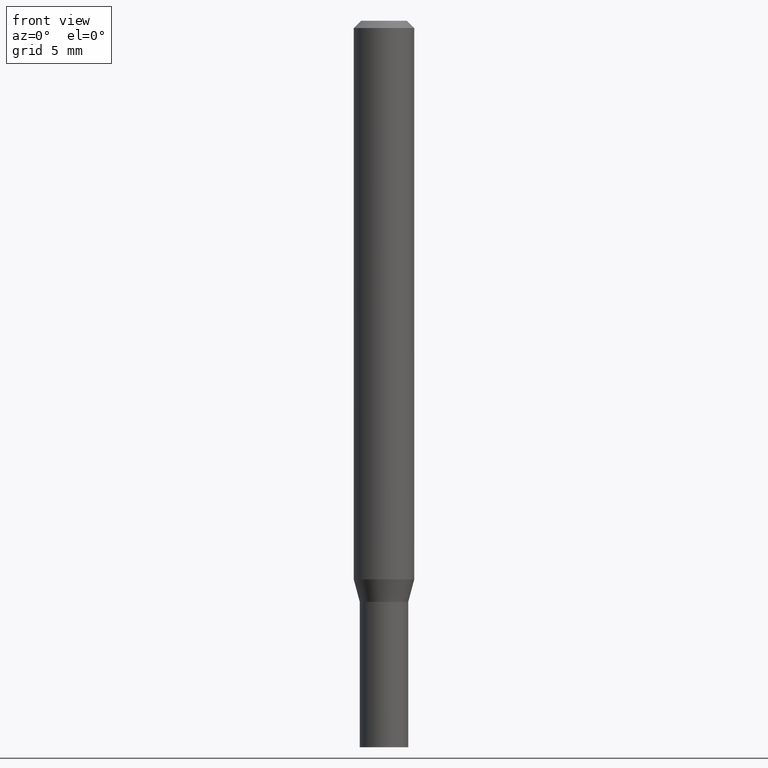
[diagram: clean part render]
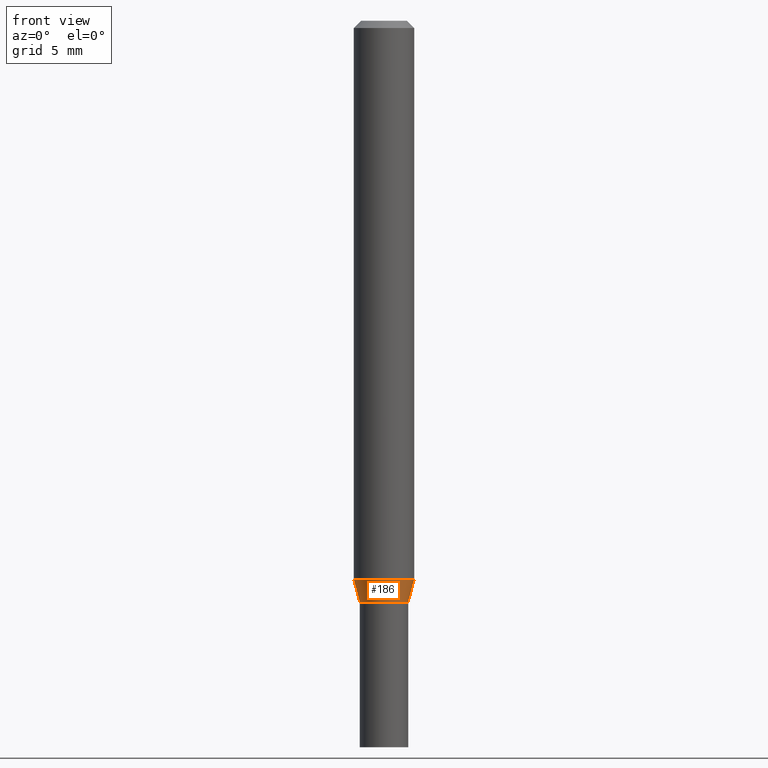
[diagram: same view with one face highlighted and labeled with its STEP entity id]
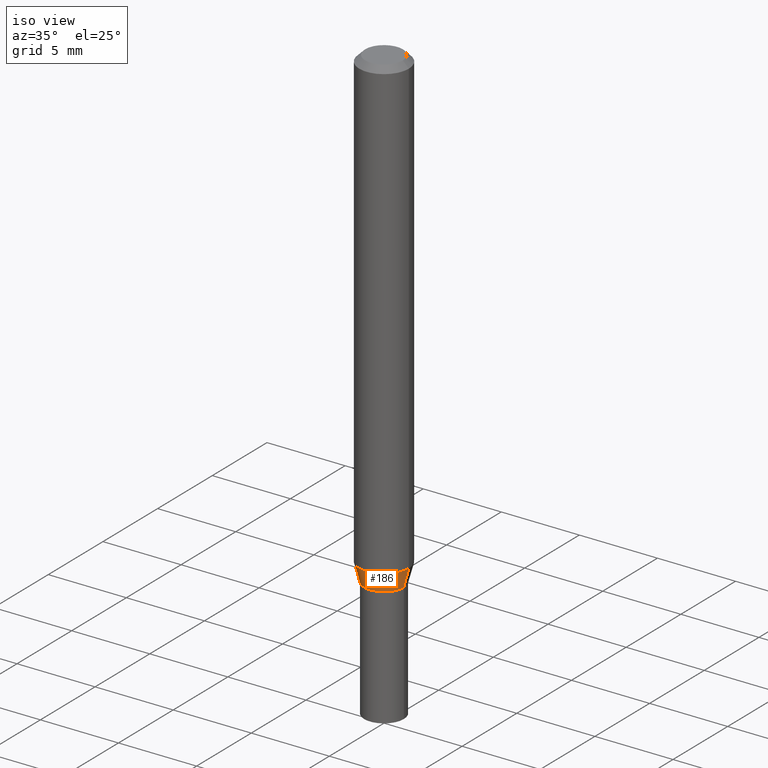
[diagram: same view with one face highlighted and labeled with its STEP entity id]
A machine part, front view. The second image highlights one B-rep face of the part: STEP entity #186.
A second angle (iso view) of the same face is appended — the face is thin or edge-on in the first view.
In plain terms, the highlighted conical surface has half-angle 15 deg.
Its self-contained STEP definition (entity closure, byte-faithful):
#6 = VERTEX_POINT ( 'NONE', #192 ) ;
#18 = ORIENTED_EDGE ( 'NONE', *, *, #80, .T. ) ;
#29 = CARTESIAN_POINT ( 'NONE',  ( 2.934562567422164701E-29, -4.189777606611775804E-15, -1.200000000000000178 ) ) ;
#74 = CARTESIAN_POINT ( 'NONE',  ( 2.820479894509568805E-29, -4.026897784733760650E-15, -1.153349364905389640 ) ) ;
#80 = EDGE_CURVE ( 'NONE', #6, #397, #407, .T. ) ;
#89 = EDGE_LOOP ( 'NONE', ( #349, #210, #18, #249 ) ) ;
#111 = VECTOR ( 'NONE', #115, 39.37007874015748854 ) ;
#115 = DIRECTION ( 'NONE',  ( 0.2588190451025212391, 1.565188264969622362E-15, 0.9659258262890679791 ) ) ;
#133 = EDGE_CURVE ( 'NONE', #420, #397, #440, .T. ) ;
#135 = VECTOR ( 'NONE', #305, 39.37007874015748854 ) ;
#161 = DIRECTION ( 'NONE',  ( -2.445468806185136597E-29, 3.491481338843145583E-15, 1.000000000000000000 ) ) ;
#164 = LINE ( 'NONE', #371, #135 ) ;
#177 = CARTESIAN_POINT ( 'NONE',  ( 0.06250000000000000000, -4.463332952089153109E-15, -1.153349364905389640 ) ) ;
#186 = ADVANCED_FACE ( 'NONE', ( #374 ), #404, .T. ) ;
#190 = EDGE_CURVE ( 'NONE', #259, #420, #164, .T. ) ;
#192 = CARTESIAN_POINT ( 'NONE',  ( 0.05000000000000006523, -4.538925740496089139E-15, -1.200000000000000178 ) ) ;
#198 = AXIS2_PLACEMENT_3D ( 'NONE', #29, #452, #419 ) ;
#210 = ORIENTED_EDGE ( 'NONE', *, *, #329, .T. ) ;
#233 = DIRECTION ( 'NONE',  ( -2.445468806185136597E-29, 3.491481338843145583E-15, 1.000000000000000000 ) ) ;
#249 = ORIENTED_EDGE ( 'NONE', *, *, #133, .F. ) ;
#259 = VERTEX_POINT ( 'NONE', #448 ) ;
#305 = DIRECTION ( 'NONE',  ( -0.2588190451025212391, 5.211531920934549464E-15, 0.9659258262890679791 ) ) ;
#315 = CARTESIAN_POINT ( 'NONE',  ( -0.06250000000000000000, -3.582808574883698823E-15, -1.153349364905389640 ) ) ;
#329 = EDGE_CURVE ( 'NONE', #259, #6, #345, .T. ) ;
#335 = DIRECTION ( 'NONE',  ( 1.000000000000000000, -6.982962677686270655E-15, 0.000000000000000000 ) ) ;
#345 = CIRCLE ( 'NONE', #198, 0.05000000000000006523 ) ;
#349 = ORIENTED_EDGE ( 'NONE', *, *, #190, .F. ) ;
#359 = CARTESIAN_POINT ( 'NONE',  ( 0.05000000000000006523, -4.538925740496089139E-15, -1.200000000000000178 ) ) ;
#371 = CARTESIAN_POINT ( 'NONE',  ( -0.05000000000000006523, -3.834506238731724606E-15, -1.200000000000000178 ) ) ;
#374 = FACE_OUTER_BOUND ( 'NONE', #89, .T. ) ;
#395 = AXIS2_PLACEMENT_3D ( 'NONE', #74, #161, #335 ) ;
#397 = VERTEX_POINT ( 'NONE', #177 ) ;
#404 = CONICAL_SURFACE ( 'NONE', #441, 0.05000000000000006523, 0.2617993877991499629 ) ;
#407 = LINE ( 'NONE', #359, #111 ) ;
#419 = DIRECTION ( 'NONE',  ( 1.000000000000000000, -6.982962677686265133E-15, 0.000000000000000000 ) ) ;
#420 = VERTEX_POINT ( 'NONE', #315 ) ;
#440 = CIRCLE ( 'NONE', #395, 0.06250000000000000000 ) ;
#441 = AXIS2_PLACEMENT_3D ( 'NONE', #450, #233, #443 ) ;
#443 = DIRECTION ( 'NONE',  ( 1.000000000000000000, -6.982962677686265133E-15, 0.000000000000000000 ) ) ;
#448 = CARTESIAN_POINT ( 'NONE',  ( -0.05000000000000006523, -3.708657406807712109E-15, -1.200000000000000178 ) ) ;
#450 = CARTESIAN_POINT ( 'NONE',  ( 2.934562567422164701E-29, -4.189777606611775804E-15, -1.200000000000000178 ) ) ;
#452 = DIRECTION ( 'NONE',  ( -2.445468806185136597E-29, 3.491481338843145583E-15, 1.000000000000000000 ) ) ;